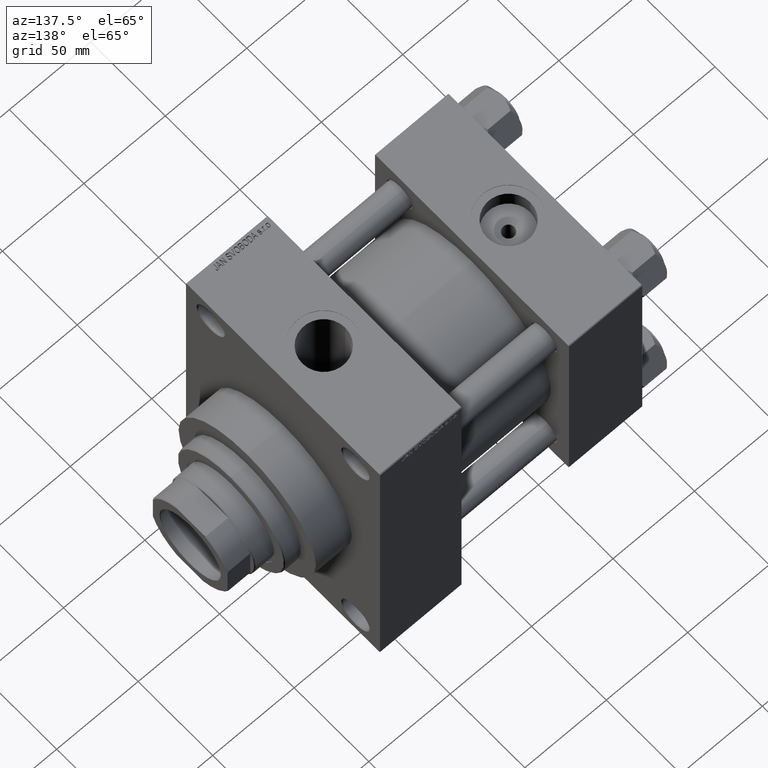
[diagram: clean part render]
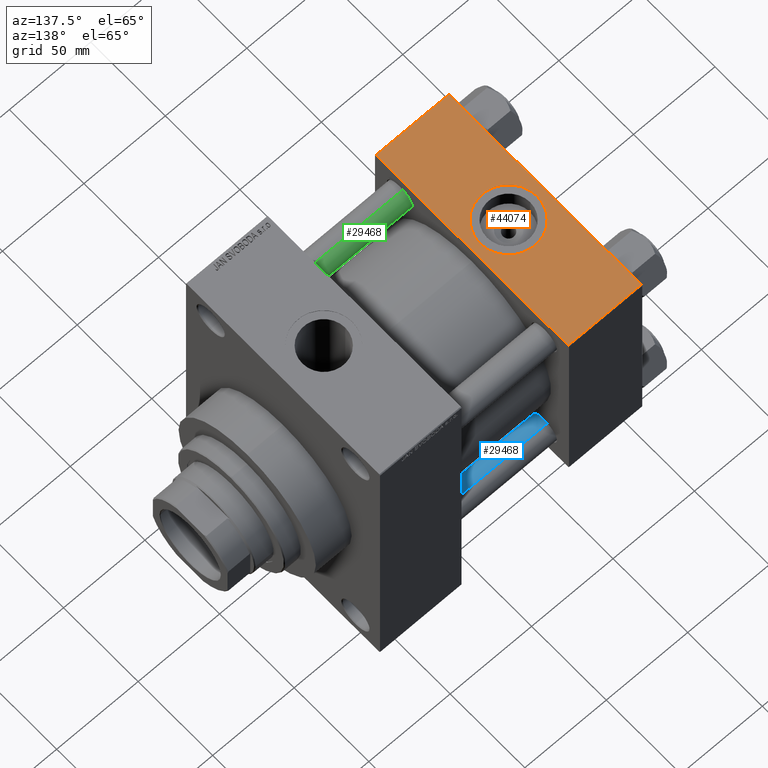
[diagram: same view with three faces highlighted in distinct colors, each labeled with its STEP entity id]
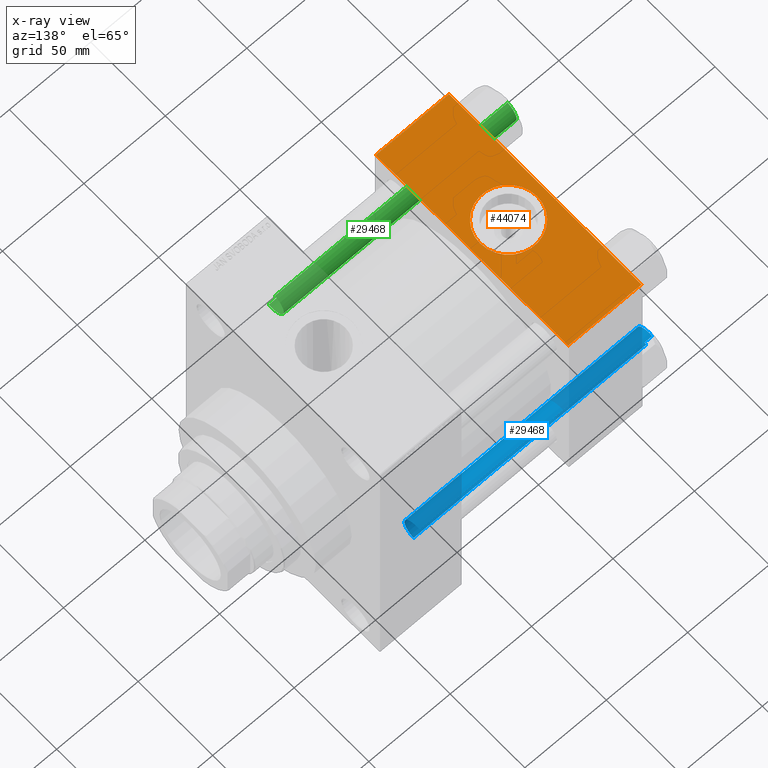
[diagram: x-ray of the same camera — body ghosted, the three highlighted faces saturated]
A machine part, auxiliary view with three faces highlighted in distinct colors.
The next image is the same camera in x-ray (body ghosted, the three faces saturated) — at least one of them is partly hidden behind the body in this view.
Their STEP definitions:

[orange] entity #44074 — the highlighted planar face has unit normal (0, 0, -1).
#608 = CIRCLE ( 'NONE', #47665, 17.50000000000000000 ) ;
#1053 = EDGE_CURVE ( 'NONE', #34997, #43789, #44554, .T. ) ;
#1946 = EDGE_CURVE ( 'NONE', #43789, #11362, #15347, .T. ) ;
#2434 = VERTEX_POINT ( 'NONE', #8039 ) ;
#2880 = VECTOR ( 'NONE', #40700, 1000.000000000000000 ) ;
#3518 = FACE_OUTER_BOUND ( 'NONE', #38511, .T. ) ;
#3529 = CARTESIAN_POINT ( 'NONE',  ( 45.00000000000000000, -64.49999999999997158, 65.00000000000000000 ) ) ;
#6405 = DIRECTION ( 'NONE',  ( 0.000000000000000000, 0.000000000000000000, 1.000000000000000000 ) ) ;
#7136 = DIRECTION ( 'NONE',  ( 0.000000000000000000, 1.067522139062650548E-16, -1.000000000000000000 ) ) ;
#8039 = CARTESIAN_POINT ( 'NONE',  ( 45.00000000000000000, 64.49999999999997158, 65.00000000000001421 ) ) ;
#9761 = DIRECTION ( 'NONE',  ( 1.000000000000000000, 0.000000000000000000, 0.000000000000000000 ) ) ;
#9778 = EDGE_CURVE ( 'NONE', #35214, #27617, #608, .T. ) ;
#10999 = PLANE ( 'NONE',  #36690 ) ;
#11362 = VERTEX_POINT ( 'NONE', #40350 ) ;
#13133 = EDGE_CURVE ( 'NONE', #27617, #35214, #39310, .T. ) ;
#15347 = LINE ( 'NONE', #3529, #46848 ) ;
#17720 = LINE ( 'NONE', #32468, #25800 ) ;
#17955 = DIRECTION ( 'NONE',  ( 0.000000000000000000, -1.000000000000000000, -1.067522139062650425E-16 ) ) ;
#18244 = DIRECTION ( 'NONE',  ( 0.000000000000000000, 1.000000000000000000, 1.067522139062650548E-16 ) ) ;
#19925 = DIRECTION ( 'NONE',  ( 0.000000000000000000, 0.000000000000000000, 1.000000000000000000 ) ) ;
#20815 = CARTESIAN_POINT ( 'NONE',  ( 4.999999999999997335, -6.530485481376167224E-15, 65.00000000000000000 ) ) ;
#21359 = DIRECTION ( 'NONE',  ( 1.000000000000000000, 0.000000000000000000, 0.000000000000000000 ) ) ;
#21986 = DIRECTION ( 'NONE',  ( -1.000000000000000000, 0.000000000000000000, 0.000000000000000000 ) ) ;
#22573 = DIRECTION ( 'NONE',  ( 1.000000000000000000, 0.000000000000000000, 0.000000000000000000 ) ) ;
#22605 = VECTOR ( 'NONE', #21986, 1000.000000000000000 ) ;
#25147 = EDGE_CURVE ( 'NONE', #2434, #34997, #43740, .T. ) ;
#25717 = FACE_BOUND ( 'NONE', #37002, .T. ) ;
#25800 = VECTOR ( 'NONE', #17955, 1000.000000000000000 ) ;
#27617 = VERTEX_POINT ( 'NONE', #40346 ) ;
#28590 = CARTESIAN_POINT ( 'NONE',  ( 0.000000000000000000, 64.49999999999997158, 65.00000000000001421 ) ) ;
#28847 = CARTESIAN_POINT ( 'NONE',  ( 22.50000000000000000, -8.673617379884035472E-15, 65.00000000000000000 ) ) ;
#32468 = CARTESIAN_POINT ( 'NONE',  ( 45.00000000000000000, 65.00000000000000000, 65.00000000000001421 ) ) ;
#33153 = AXIS2_PLACEMENT_3D ( 'NONE', #28847, #6405, #21359 ) ;
#34098 = CARTESIAN_POINT ( 'NONE',  ( 0.000000000000000000, -64.49999999999997158, 65.00000000000000000 ) ) ;
#34464 = ORIENTED_EDGE ( 'NONE', *, *, #1053, .T. ) ;
#34997 = VERTEX_POINT ( 'NONE', #28590 ) ;
#35214 = VERTEX_POINT ( 'NONE', #20815 ) ;
#35275 = ORIENTED_EDGE ( 'NONE', *, *, #13133, .F. ) ;
#36690 = AXIS2_PLACEMENT_3D ( 'NONE', #47228, #7136, #18244 ) ;
#37002 = EDGE_LOOP ( 'NONE', ( #35275, #45247 ) ) ;
#37020 = EDGE_CURVE ( 'NONE', #2434, #11362, #17720, .T. ) ;
#38265 = ORIENTED_EDGE ( 'NONE', *, *, #25147, .T. ) ;
#38511 = EDGE_LOOP ( 'NONE', ( #34464, #44847, #45315, #38265 ) ) ;
#38518 = CARTESIAN_POINT ( 'NONE',  ( 22.50000000000000000, -8.673617379884035472E-15, 65.00000000000000000 ) ) ;
#39310 = CIRCLE ( 'NONE', #33153, 17.50000000000000000 ) ;
#39985 = CARTESIAN_POINT ( 'NONE',  ( 0.000000000000000000, 65.00000000000000000, 65.00000000000001421 ) ) ;
#40346 = CARTESIAN_POINT ( 'NONE',  ( 40.00000000000000000, -8.673617379884035472E-15, 65.00000000000000000 ) ) ;
#40350 = CARTESIAN_POINT ( 'NONE',  ( 45.00000000000000000, -64.49999999999997158, 65.00000000000000000 ) ) ;
#40700 = DIRECTION ( 'NONE',  ( 0.000000000000000000, -1.000000000000000000, -1.067522139062650425E-16 ) ) ;
#43740 = LINE ( 'NONE', #47597, #22605 ) ;
#43789 = VERTEX_POINT ( 'NONE', #34098 ) ;
#44074 = ADVANCED_FACE ( 'NONE', ( #25717, #3518 ), #10999, .F. ) ;
#44554 = LINE ( 'NONE', #39985, #2880 ) ;
#44847 = ORIENTED_EDGE ( 'NONE', *, *, #1946, .T. ) ;
#45247 = ORIENTED_EDGE ( 'NONE', *, *, #9778, .F. ) ;
#45315 = ORIENTED_EDGE ( 'NONE', *, *, #37020, .F. ) ;
#46848 = VECTOR ( 'NONE', #22573, 1000.000000000000000 ) ;
#47228 = CARTESIAN_POINT ( 'NONE',  ( 45.00000000000000000, 65.00000000000000000, 65.00000000000001421 ) ) ;
#47597 = CARTESIAN_POINT ( 'NONE',  ( 0.000000000000000000, 64.49999999999997158, 65.00000000000001421 ) ) ;
#47665 = AXIS2_PLACEMENT_3D ( 'NONE', #38518, #19925, #9761 ) ;

[blue] entity #29468 — the highlighted cylindrical surface (edge-blend (fillet) strip) has radius 8 mm, axis along (1, -0, 0).
#2220 = LINE ( 'NONE', #6534, #39869 ) ;
#2454 = DIRECTION ( 'NONE',  ( -0.000000000000000000, -0.000000000000000000, -1.000000000000000000 ) ) ;
#6260 = VECTOR ( 'NONE', #43942, 1000.000000000000000 ) ;
#6534 = CARTESIAN_POINT ( 'NONE',  ( 8.000000000000000000, 9.797174393178825657E-16, 144.0000000000000000 ) ) ;
#6572 = DIRECTION ( 'NONE',  ( -0.000000000000000000, -0.000000000000000000, -1.000000000000000000 ) ) ;
#6997 = EDGE_CURVE ( 'NONE', #29924, #15511, #2220, .T. ) ;
#7842 = VERTEX_POINT ( 'NONE', #8564 ) ;
#8564 = CARTESIAN_POINT ( 'NONE',  ( -8.000000000000000000, 0.000000000000000000, 143.5000000000000000 ) ) ;
#9228 = ORIENTED_EDGE ( 'NONE', *, *, #6997, .F. ) ;
#9719 = FACE_OUTER_BOUND ( 'NONE', #25587, .T. ) ;
#10265 = ORIENTED_EDGE ( 'NONE', *, *, #38895, .T. ) ;
#13123 = CYLINDRICAL_SURFACE ( 'NONE', #47442, 8.000000000000000000 ) ;
#14065 = CARTESIAN_POINT ( 'NONE',  ( 0.000000000000000000, 0.000000000000000000, 144.0000000000000000 ) ) ;
#14757 = ORIENTED_EDGE ( 'NONE', *, *, #17243, .T. ) ;
#15511 = VERTEX_POINT ( 'NONE', #27993 ) ;
#17243 = EDGE_CURVE ( 'NONE', #7842, #43607, #44644, .T. ) ;
#21248 = CIRCLE ( 'NONE', #28180, 8.000000000000000000 ) ;
#21293 = DIRECTION ( 'NONE',  ( -1.000000000000000000, 0.000000000000000000, 0.000000000000000000 ) ) ;
#21460 = DIRECTION ( 'NONE',  ( 0.000000000000000000, 0.000000000000000000, -1.000000000000000000 ) ) ;
#22004 = CIRCLE ( 'NONE', #45136, 8.000000000000000000 ) ;
#25587 = EDGE_LOOP ( 'NONE', ( #9228, #10265, #14757, #35046 ) ) ;
#27993 = CARTESIAN_POINT ( 'NONE',  ( 8.000000000000000000, 9.797174393178825657E-16, 0.5000000000000281997 ) ) ;
#28180 = AXIS2_PLACEMENT_3D ( 'NONE', #31919, #47345, #32161 ) ;
#29468 = ADVANCED_FACE ( 'NONE', ( #9719 ), #13123, .T. ) ;
#29678 = CARTESIAN_POINT ( 'NONE',  ( -8.000000000000000000, 0.000000000000000000, 144.0000000000000000 ) ) ;
#29924 = VERTEX_POINT ( 'NONE', #43167 ) ;
#31919 = CARTESIAN_POINT ( 'NONE',  ( 0.000000000000000000, 0.000000000000000000, 0.5000000000000281997 ) ) ;
#32161 = DIRECTION ( 'NONE',  ( 1.000000000000000000, 0.000000000000000000, 0.000000000000000000 ) ) ;
#33874 = CARTESIAN_POINT ( 'NONE',  ( -8.000000000000000000, 0.000000000000000000, 0.5000000000000281997 ) ) ;
#35046 = ORIENTED_EDGE ( 'NONE', *, *, #42980, .T. ) ;
#36669 = DIRECTION ( 'NONE',  ( 1.000000000000000000, 0.000000000000000000, 0.000000000000000000 ) ) ;
#38895 = EDGE_CURVE ( 'NONE', #29924, #7842, #22004, .T. ) ;
#39869 = VECTOR ( 'NONE', #2454, 1000.000000000000000 ) ;
#42980 = EDGE_CURVE ( 'NONE', #43607, #15511, #21248, .T. ) ;
#43167 = CARTESIAN_POINT ( 'NONE',  ( 8.000000000000000000, 9.797174393178825657E-16, 143.5000000000000000 ) ) ;
#43607 = VERTEX_POINT ( 'NONE', #33874 ) ;
#43942 = DIRECTION ( 'NONE',  ( -0.000000000000000000, -0.000000000000000000, -1.000000000000000000 ) ) ;
#44154 = CARTESIAN_POINT ( 'NONE',  ( 0.000000000000000000, 0.000000000000000000, 143.5000000000000000 ) ) ;
#44644 = LINE ( 'NONE', #29678, #6260 ) ;
#45136 = AXIS2_PLACEMENT_3D ( 'NONE', #44154, #21460, #36669 ) ;
#47345 = DIRECTION ( 'NONE',  ( -0.000000000000000000, -0.000000000000000000, 1.000000000000000000 ) ) ;
#47442 = AXIS2_PLACEMENT_3D ( 'NONE', #14065, #6572, #21293 ) ;

[green] entity #29468 — the highlighted cylindrical surface (edge-blend (fillet) strip) has radius 8 mm, axis along (1, 0, 0).
#2220 = LINE ( 'NONE', #6534, #39869 ) ;
#2454 = DIRECTION ( 'NONE',  ( -0.000000000000000000, -0.000000000000000000, -1.000000000000000000 ) ) ;
#6260 = VECTOR ( 'NONE', #43942, 1000.000000000000000 ) ;
#6534 = CARTESIAN_POINT ( 'NONE',  ( 8.000000000000000000, 9.797174393178825657E-16, 144.0000000000000000 ) ) ;
#6572 = DIRECTION ( 'NONE',  ( -0.000000000000000000, -0.000000000000000000, -1.000000000000000000 ) ) ;
#6997 = EDGE_CURVE ( 'NONE', #29924, #15511, #2220, .T. ) ;
#7842 = VERTEX_POINT ( 'NONE', #8564 ) ;
#8564 = CARTESIAN_POINT ( 'NONE',  ( -8.000000000000000000, 0.000000000000000000, 143.5000000000000000 ) ) ;
#9228 = ORIENTED_EDGE ( 'NONE', *, *, #6997, .F. ) ;
#9719 = FACE_OUTER_BOUND ( 'NONE', #25587, .T. ) ;
#10265 = ORIENTED_EDGE ( 'NONE', *, *, #38895, .T. ) ;
#13123 = CYLINDRICAL_SURFACE ( 'NONE', #47442, 8.000000000000000000 ) ;
#14065 = CARTESIAN_POINT ( 'NONE',  ( 0.000000000000000000, 0.000000000000000000, 144.0000000000000000 ) ) ;
#14757 = ORIENTED_EDGE ( 'NONE', *, *, #17243, .T. ) ;
#15511 = VERTEX_POINT ( 'NONE', #27993 ) ;
#17243 = EDGE_CURVE ( 'NONE', #7842, #43607, #44644, .T. ) ;
#21248 = CIRCLE ( 'NONE', #28180, 8.000000000000000000 ) ;
#21293 = DIRECTION ( 'NONE',  ( -1.000000000000000000, 0.000000000000000000, 0.000000000000000000 ) ) ;
#21460 = DIRECTION ( 'NONE',  ( 0.000000000000000000, 0.000000000000000000, -1.000000000000000000 ) ) ;
#22004 = CIRCLE ( 'NONE', #45136, 8.000000000000000000 ) ;
#25587 = EDGE_LOOP ( 'NONE', ( #9228, #10265, #14757, #35046 ) ) ;
#27993 = CARTESIAN_POINT ( 'NONE',  ( 8.000000000000000000, 9.797174393178825657E-16, 0.5000000000000281997 ) ) ;
#28180 = AXIS2_PLACEMENT_3D ( 'NONE', #31919, #47345, #32161 ) ;
#29468 = ADVANCED_FACE ( 'NONE', ( #9719 ), #13123, .T. ) ;
#29678 = CARTESIAN_POINT ( 'NONE',  ( -8.000000000000000000, 0.000000000000000000, 144.0000000000000000 ) ) ;
#29924 = VERTEX_POINT ( 'NONE', #43167 ) ;
#31919 = CARTESIAN_POINT ( 'NONE',  ( 0.000000000000000000, 0.000000000000000000, 0.5000000000000281997 ) ) ;
#32161 = DIRECTION ( 'NONE',  ( 1.000000000000000000, 0.000000000000000000, 0.000000000000000000 ) ) ;
#33874 = CARTESIAN_POINT ( 'NONE',  ( -8.000000000000000000, 0.000000000000000000, 0.5000000000000281997 ) ) ;
#35046 = ORIENTED_EDGE ( 'NONE', *, *, #42980, .T. ) ;
#36669 = DIRECTION ( 'NONE',  ( 1.000000000000000000, 0.000000000000000000, 0.000000000000000000 ) ) ;
#38895 = EDGE_CURVE ( 'NONE', #29924, #7842, #22004, .T. ) ;
#39869 = VECTOR ( 'NONE', #2454, 1000.000000000000000 ) ;
#42980 = EDGE_CURVE ( 'NONE', #43607, #15511, #21248, .T. ) ;
#43167 = CARTESIAN_POINT ( 'NONE',  ( 8.000000000000000000, 9.797174393178825657E-16, 143.5000000000000000 ) ) ;
#43607 = VERTEX_POINT ( 'NONE', #33874 ) ;
#43942 = DIRECTION ( 'NONE',  ( -0.000000000000000000, -0.000000000000000000, -1.000000000000000000 ) ) ;
#44154 = CARTESIAN_POINT ( 'NONE',  ( 0.000000000000000000, 0.000000000000000000, 143.5000000000000000 ) ) ;
#44644 = LINE ( 'NONE', #29678, #6260 ) ;
#45136 = AXIS2_PLACEMENT_3D ( 'NONE', #44154, #21460, #36669 ) ;
#47345 = DIRECTION ( 'NONE',  ( -0.000000000000000000, -0.000000000000000000, 1.000000000000000000 ) ) ;
#47442 = AXIS2_PLACEMENT_3D ( 'NONE', #14065, #6572, #21293 ) ;